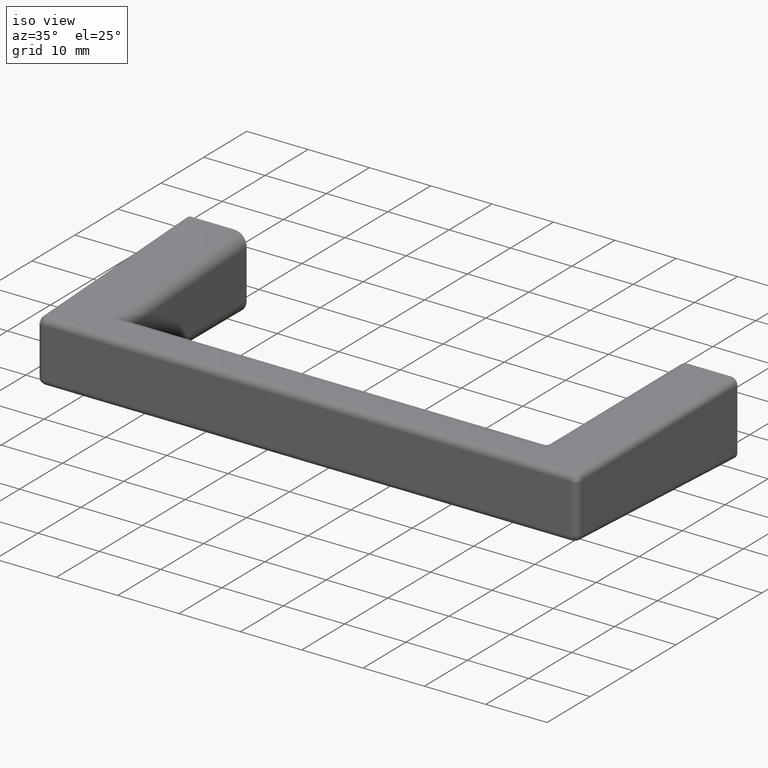
[diagram: clean part render]
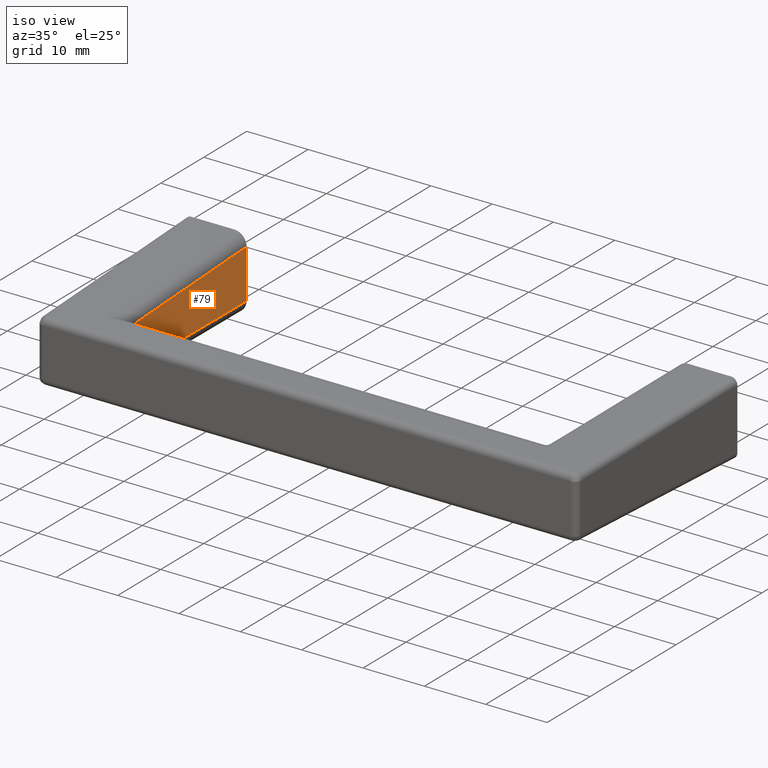
[diagram: same view with one face highlighted and labeled with its STEP entity id]
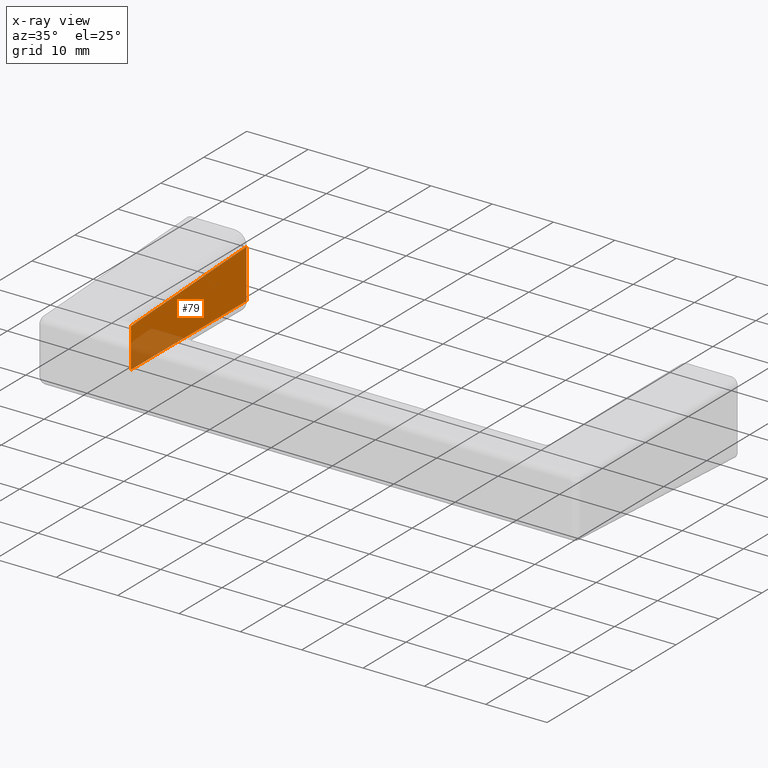
[diagram: x-ray of the same camera — body ghosted, the highlighted face saturated]
A machine part, iso view. The second image highlights one B-rep face of the part: STEP entity #79.
The next image is the same camera in x-ray: the body ghosted, the highlighted face saturated — about 19% of this face is hidden behind the body in this view.
In plain terms, the highlighted planar face has unit normal (-0.9996, -0.0278, 0).
Its self-contained STEP definition (entity closure, byte-faithful):
#79=ADVANCED_FACE('',(#481),#480,.F.);
#480=PLANE('',#970);
#481=FACE_OUTER_BOUND('',#971,.T.);
#967=CARTESIAN_POINT('',(-3.50778525709E+001,2.80288585614E+000,-4.79722324237E+000));
#968=DIRECTION('',(-9.99614473803E-001,-2.77651537465E-002,0.00000000000E+000));
#969=DIRECTION('',(2.77651537465E-002,-9.99614473803E-001,0.00000000000E+000));
#970=AXIS2_PLACEMENT_3D('',#967,#968,#969);
#971=EDGE_LOOP('',(#1230,#1231,#1232,#1233,#1234,#1235));
#1230=ORIENTED_EDGE('',*,*,#1415,.T.);
#1231=ORIENTED_EDGE('',*,*,#1387,.T.);
#1232=ORIENTED_EDGE('',*,*,#1389,.T.);
#1233=ORIENTED_EDGE('',*,*,#1393,.T.);
#1234=ORIENTED_EDGE('',*,*,#1409,.T.);
#1235=ORIENTED_EDGE('',*,*,#1439,.F.);
#1387=EDGE_CURVE('',#1842,#1856,#1863,.T.);
#1389=EDGE_CURVE('',#1856,#1869,#1876,.T.);
#1393=EDGE_CURVE('',#1869,#1896,#1903,.T.);
#1409=EDGE_CURVE('',#1896,#2004,#2005,.T.);
#1415=EDGE_CURVE('',#2043,#1842,#2044,.T.);
#1439=EDGE_CURVE('',#2043,#2004,#2194,.T.);
#1842=VERTEX_POINT('',#2780);
#1856=VERTEX_POINT('',#2792);
#1863=LINE('',#2801,#2802);
#1869=VERTEX_POINT('',#2804);
#1876=LINE('',#2812,#2813);
#1896=VERTEX_POINT('',#2848);
#1903=LINE('',#2856,#2857);
#2004=VERTEX_POINT('',#3003);
#2005=LINE('',#3004,#3005);
#2043=VERTEX_POINT('',#3030);
#2044=LINE('',#3031,#3032);
#2194=LINE('',#3185,#3186);
#2780=CARTESIAN_POINT('',(-3.42214742906E+001,-2.80288585614E+001,3.21910663082E+000));
#2792=CARTESIAN_POINT('',(-3.42215046610E+001,-2.80277651537E+001,3.13811743274E+000));
#2801=CARTESIAN_POINT('',(-3.42214742906E+001,-2.80288585614E+001,3.21910663082E+000));
#2802=VECTOR('',#2803,8.09965843069E-002);
#2803=DIRECTION('',(-3.74958272779E-004,1.34994288198E-002,-9.99908808256E-001));
#2804=CARTESIAN_POINT('',(-3.42215046610E+001,-2.80277651537E+001,-3.13811743274E+000));
#2812=CARTESIAN_POINT('',(-3.42215046610E+001,-2.80277651537E+001,3.13811743274E+000));
#2813=VECTOR('',#2814,6.27623486547E+000);
#2814=DIRECTION('',(0.00000000000E+000,0.00000000000E+000,-1.00000000000E+000));
#2848=CARTESIAN_POINT('',(-3.42214742906E+001,-2.80288585614E+001,-3.21910663082E+000));
#2856=CARTESIAN_POINT('',(-3.42215046610E+001,-2.80277651537E+001,-3.13811743274E+000));
#2857=VECTOR('',#2858,8.09965843069E-002);
#2858=DIRECTION('',(3.74958272779E-004,-1.34994288198E-002,-9.99908808256E-001));
#3003=CARTESIAN_POINT('',(-3.50000000000E+001,0.00000000000E+000,-3.99768603531E+000));
#3004=CARTESIAN_POINT('',(-3.42214742906E+001,-2.80288585614E+001,-3.21910663082E+000));
#3005=VECTOR('',#3006,2.80504759393E+001);
#3006=DIRECTION('',(-2.77544563249E-002,9.99229340065E-001,-2.77563705574E-002));
#3030=CARTESIAN_POINT('',(-3.50000000000E+001,0.00000000000E+000,3.99768603531E+000));
#3031=CARTESIAN_POINT('',(-3.50000000000E+001,0.00000000000E+000,3.99768603531E+000));
#3032=VECTOR('',#3033,2.80504759393E+001);
#3033=DIRECTION('',(2.77544563249E-002,-9.99229340065E-001,-2.77563705574E-002));
#3185=CARTESIAN_POINT('',(-3.50000000000E+001,0.00000000000E+000,3.99768603531E+000));
#3186=VECTOR('',#3187,7.99537207061E+000);
#3187=DIRECTION('',(0.00000000000E+000,0.00000000000E+000,-1.00000000000E+000));